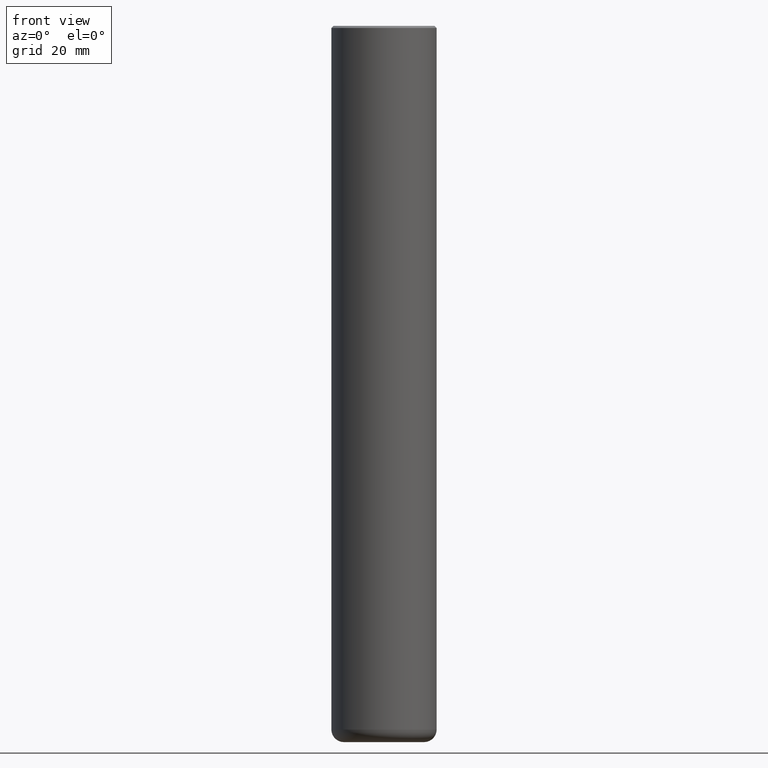
[diagram: clean part render]
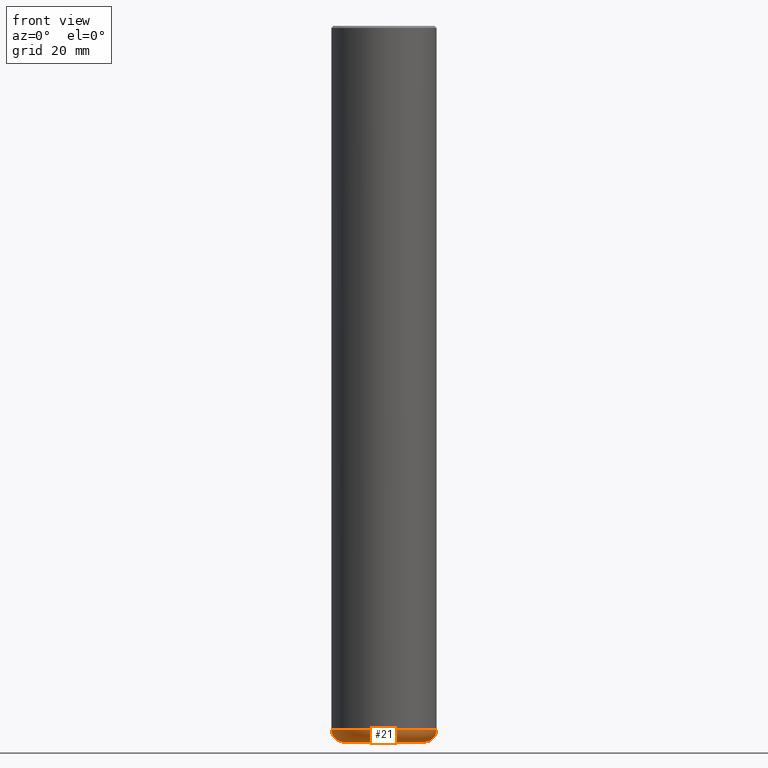
[diagram: same view with one face highlighted and labeled with its STEP entity id]
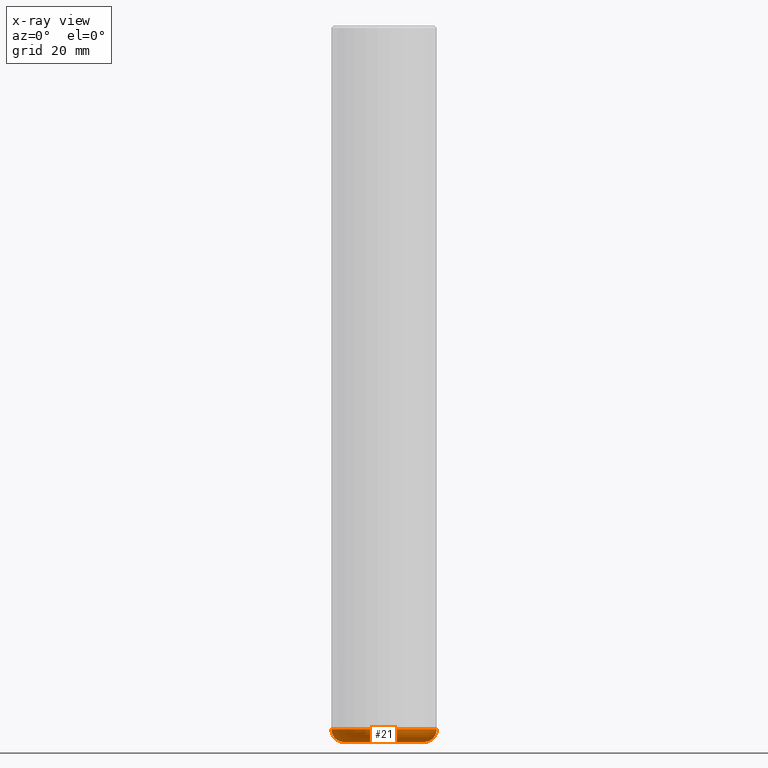
[diagram: x-ray of the same camera — body ghosted, the highlighted face saturated]
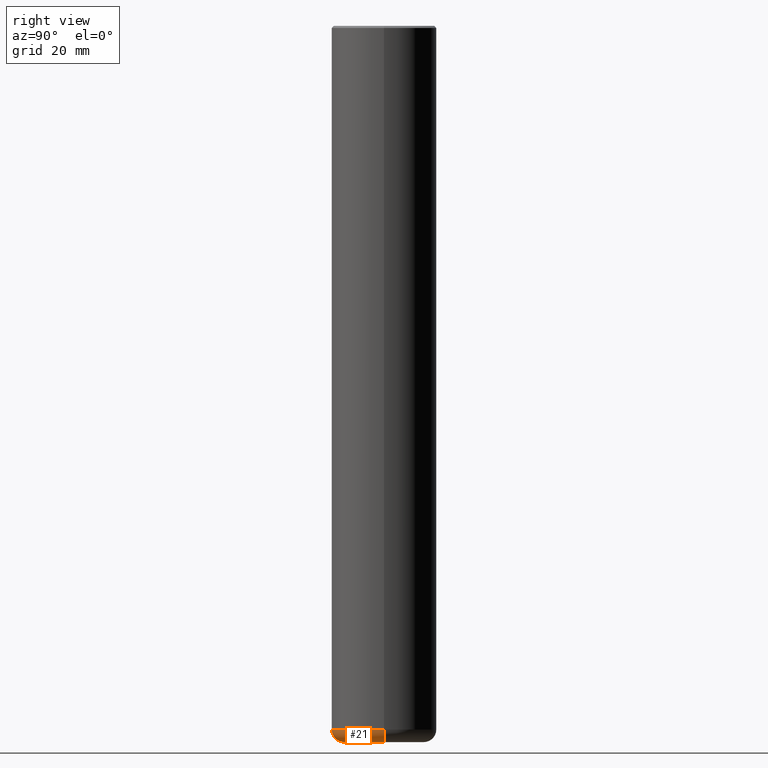
[diagram: same view with one face highlighted and labeled with its STEP entity id]
A machine part, front view. The second image highlights one B-rep face of the part: STEP entity #21.
The next image is the same camera in x-ray: the body ghosted, the highlighted face saturated — about 0% of this face is hidden behind the body in this view.
A second angle (right view) of the same face is appended — the face is thin or edge-on in the first view.
In plain terms, the highlighted toroidal blend (fillet) surface has major radius 9.5009 mm and minor (blend) radius 2.9997 mm.
Its self-contained STEP definition (entity closure, byte-faithful):
#1 = EDGE_CURVE ( 'NONE', #62, #160, #71, .T. ) ;
#3 = DIRECTION ( 'NONE',  ( -6.982962677686266711E-15, -1.000000000000000000, 3.491481338843145583E-15 ) ) ;
#13 = CARTESIAN_POINT ( 'NONE',  ( -0.3740499999999999381, -2.029800640351526055E-14, -6.574799999999999756 ) ) ;
#21 = ADVANCED_FACE ( 'NONE', ( #321 ), #188, .T. ) ;
#62 = VERTEX_POINT ( 'NONE', #121 ) ;
#71 = CIRCLE ( 'NONE', #95, 0.3740499999999999381 ) ;
#74 = DIRECTION ( 'NONE',  ( -2.445468806185136597E-29, 3.491481338843145583E-15, 1.000000000000000000 ) ) ;
#91 = VERTEX_POINT ( 'NONE', #311 ) ;
#95 = AXIS2_PLACEMENT_3D ( 'NONE', #118, #372, #347 ) ;
#109 = VERTEX_POINT ( 'NONE', #331 ) ;
#115 = EDGE_CURVE ( 'NONE', #160, #91, #263, .T. ) ;
#118 = CARTESIAN_POINT ( 'NONE',  ( 1.636727817291649742E-28, -2.336813545274328465E-14, -6.692899999999998961 ) ) ;
#121 = CARTESIAN_POINT ( 'NONE',  ( -0.3740499999999999381, -2.008460289110761207E-14, -6.692899999999998961 ) ) ;
#127 = AXIS2_PLACEMENT_3D ( 'NONE', #13, #305, #366 ) ;
#154 = DIRECTION ( 'NONE',  ( -2.445468806185136597E-29, 3.491481338843145583E-15, 1.000000000000000000 ) ) ;
#160 = VERTEX_POINT ( 'NONE', #227 ) ;
#165 = DIRECTION ( 'NONE',  ( 1.000000000000000000, -6.982962677686270655E-15, 0.000000000000000000 ) ) ;
#188 = TOROIDAL_SURFACE ( 'NONE', #206, 0.3740499999999999381, 0.1180999999999994832 ) ;
#197 = CIRCLE ( 'NONE', #352, 0.4921499999999999764 ) ;
#201 = CARTESIAN_POINT ( 'NONE',  ( 1.607846830690603466E-28, -2.295579150662591525E-14, -6.574799999999999756 ) ) ;
#206 = AXIS2_PLACEMENT_3D ( 'NONE', #341, #154, #408 ) ;
#213 = ORIENTED_EDGE ( 'NONE', *, *, #400, .F. ) ;
#227 = CARTESIAN_POINT ( 'NONE',  ( 0.3740499999999999381, -2.598011264233183059E-14, -6.692899999999998961 ) ) ;
#240 = CIRCLE ( 'NONE', #127, 0.1180999999999994832 ) ;
#260 = CARTESIAN_POINT ( 'NONE',  ( 0.3740499999999999381, -2.556776869621446119E-14, -6.574799999999999756 ) ) ;
#263 = CIRCLE ( 'NONE', #345, 0.1180999999999994832 ) ;
#305 = DIRECTION ( 'NONE',  ( 7.105427357601001859E-15, 1.000000000000000000, -3.491481338843145583E-15 ) ) ;
#307 = ORIENTED_EDGE ( 'NONE', *, *, #407, .F. ) ;
#311 = CARTESIAN_POINT ( 'NONE',  ( 0.4921499999999996988, -2.639245658844920945E-14, -6.574799999999999756 ) ) ;
#321 = FACE_OUTER_BOUND ( 'NONE', #322, .T. ) ;
#322 = EDGE_LOOP ( 'NONE', ( #307, #368, #402, #213 ) ) ;
#331 = CARTESIAN_POINT ( 'NONE',  ( -0.4921499999999996988, -1.945885543258258788E-14, -6.574799999999999756 ) ) ;
#341 = CARTESIAN_POINT ( 'NONE',  ( 1.607846830690603466E-28, -2.295579150662591525E-14, -6.574799999999999756 ) ) ;
#345 = AXIS2_PLACEMENT_3D ( 'NONE', #260, #3, #165 ) ;
#347 = DIRECTION ( 'NONE',  ( 1.000000000000000000, -6.982962677686265133E-15, 0.000000000000000000 ) ) ;
#352 = AXIS2_PLACEMENT_3D ( 'NONE', #201, #74, #369 ) ;
#366 = DIRECTION ( 'NONE',  ( -1.000000000000000000, 7.105427357601001859E-15, 0.000000000000000000 ) ) ;
#368 = ORIENTED_EDGE ( 'NONE', *, *, #1, .T. ) ;
#369 = DIRECTION ( 'NONE',  ( 1.000000000000000000, -6.982962677686265922E-15, 0.000000000000000000 ) ) ;
#372 = DIRECTION ( 'NONE',  ( -2.445468806185136597E-29, 3.491481338843145583E-15, 1.000000000000000000 ) ) ;
#400 = EDGE_CURVE ( 'NONE', #109, #91, #197, .T. ) ;
#402 = ORIENTED_EDGE ( 'NONE', *, *, #115, .T. ) ;
#407 = EDGE_CURVE ( 'NONE', #62, #109, #240, .T. ) ;
#408 = DIRECTION ( 'NONE',  ( 1.000000000000000000, -6.982962677686265922E-15, 4.883557194083112901E-29 ) ) ;